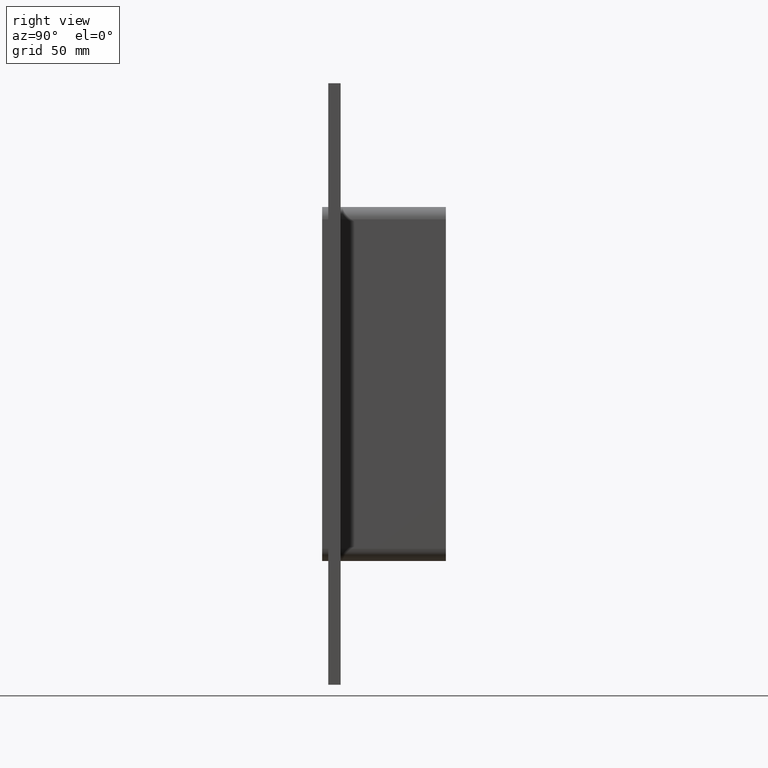
[diagram: clean part render]
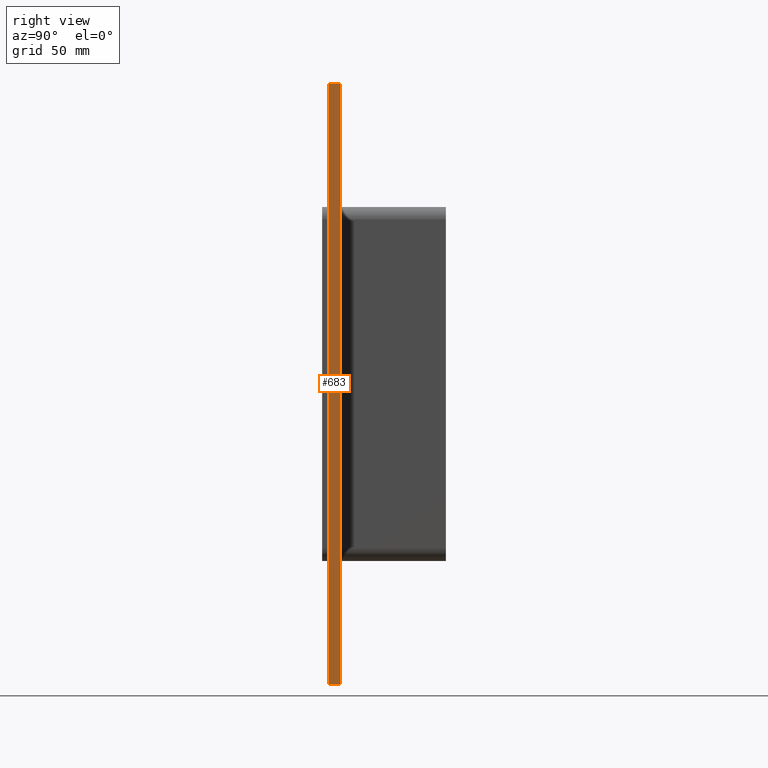
[diagram: same view with one face highlighted and labeled with its STEP entity id]
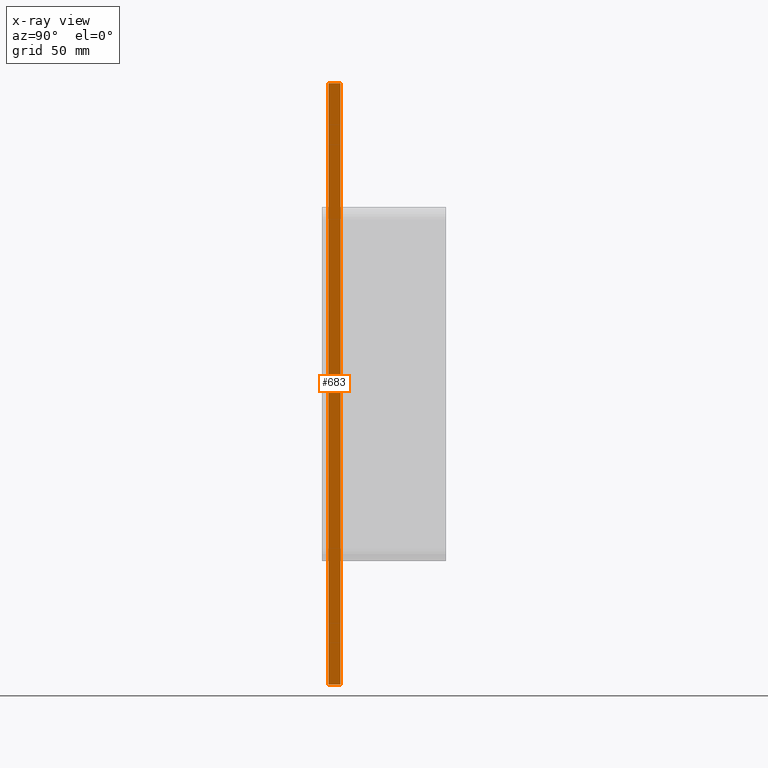
[diagram: x-ray of the same camera — body ghosted, the highlighted face saturated]
A machine part, right view. The second image highlights one B-rep face of the part: STEP entity #683.
The next image is the same camera in x-ray: the body ghosted, the highlighted face saturated — about 0% of this face is hidden behind the body in this view.
In plain terms, the highlighted planar face has unit normal (1, 0, 0).
Its self-contained STEP definition (entity closure, byte-faithful):
#355=CARTESIAN_POINT('',(96.25,6.000000000000001,145.75));
#356=VERTEX_POINT('',#355);
#363=CARTESIAN_POINT('',(96.25,6.000000000000001,-145.74999999999997));
#364=VERTEX_POINT('',#363);
#365=CARTESIAN_POINT('',(96.25,6.000000000000001,145.75));
#366=DIRECTION('',(0.0,0.0,-1.0));
#367=VECTOR('',#366,291.5);
#368=LINE('',#365,#367);
#369=EDGE_CURVE('',#356,#364,#368,.T.);
#495=CARTESIAN_POINT('',(96.25,0.0,145.75));
#496=VERTEX_POINT('',#495);
#511=CARTESIAN_POINT('',(96.25,0.0,-145.75));
#512=VERTEX_POINT('',#511);
#519=CARTESIAN_POINT('',(96.25,0.0,145.75));
#520=DIRECTION('',(0.0,0.0,-1.0));
#521=VECTOR('',#520,291.5);
#522=LINE('',#519,#521);
#523=EDGE_CURVE('',#496,#512,#522,.T.);
#658=CARTESIAN_POINT('',(96.25,0.0,-145.75));
#659=DIRECTION('',(0.0,1.0,0.0));
#660=VECTOR('',#659,6.000000000000001);
#661=LINE('',#658,#660);
#662=EDGE_CURVE('',#512,#364,#661,.T.);
#667=CARTESIAN_POINT('',(96.25,0.0,145.75));
#668=DIRECTION('',(1.0,0.0,0.0));
#669=DIRECTION('',(0.0,0.0,-1.0));
#670=AXIS2_PLACEMENT_3D('',#667,#668,#669);
#671=PLANE('',#670);
#672=ORIENTED_EDGE('',*,*,#523,.T.);
#673=ORIENTED_EDGE('',*,*,#662,.T.);
#674=ORIENTED_EDGE('',*,*,#369,.F.);
#675=CARTESIAN_POINT('',(96.25,0.0,145.75));
#676=DIRECTION('',(0.0,1.0,0.0));
#677=VECTOR('',#676,6.000000000000001);
#678=LINE('',#675,#677);
#679=EDGE_CURVE('',#496,#356,#678,.T.);
#680=ORIENTED_EDGE('',*,*,#679,.F.);
#681=EDGE_LOOP('',(#672,#673,#674,#680));
#682=FACE_OUTER_BOUND('',#681,.T.);
#683=ADVANCED_FACE('',(#682),#671,.T.);